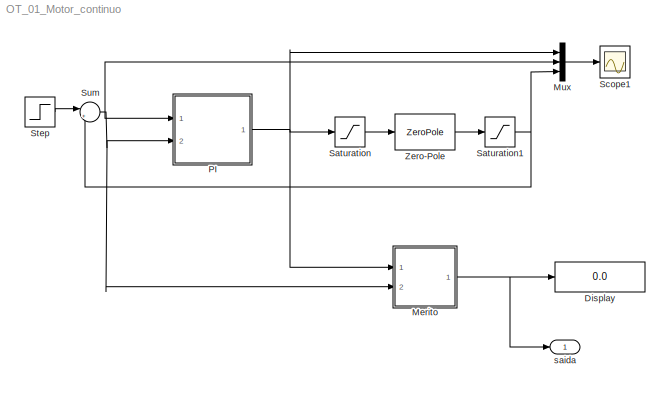
MODEL OT_01_Motor_continuo
KIND model
BLOCK [Display] Display
  Decimation = 1
  Lockdown = off
  Ports = [1]
  SID = 1
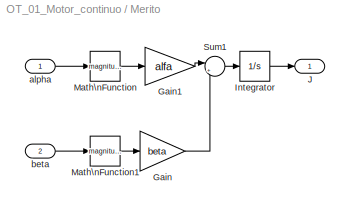
BLOCK [SubSystem] Merito
  FunctionWithSeparateData = off
  MaskHideContents = off
  MinAlgLoopOccurrences = off
  Opaque = off
  Ports = [2, 1]
  PropExecContextOutsideSubsystem = off
  RTWSystemCode = Auto
  RequestExecContextInheritance = off
  SID = 2
BLOCK [Gain] Merito/Gain
  Gain = beta
  SID = 5
BLOCK [Gain] Merito/Gain1
  Gain = alfa
  SID = 6
BLOCK [Integrator] Merito/Integrator
  Ports = [1, 1]
  SID = 7
BLOCK [Outport] Merito/J
  IconDisplay = Port number
  SID = 11
BLOCK [Math] Merito/Math\nFunction
  Operator = magnitude^2
  Ports = [1, 1]
  SID = 8
BLOCK [Math] Merito/Math\nFunction1
  Operator = magnitude^2
  Ports = [1, 1]
  SID = 9
BLOCK [Sum] Merito/Sum1
  IconShape = round
  InputSameDT = off
  Inputs = |++
  OutDataTypeStr = Inherit: Inherit via internal rule
  Ports = [2, 1]
  SID = 10
BLOCK [Inport] Merito/alpha
  IconDisplay = Port number
  SID = 3
BLOCK [Inport] Merito/beta
  IconDisplay = Port number
  Port = 2
  SID = 4
BLOCK [Mux] Mux
  DisplayOption = bar
  Inputs = 3
  Ports = [3, 1]
  SID = 12
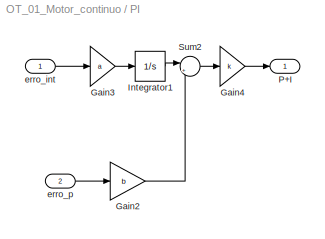
BLOCK [SubSystem] PI
  FunctionWithSeparateData = off
  MaskHideContents = off
  MinAlgLoopOccurrences = off
  Opaque = off
  Ports = [2, 1]
  PropExecContextOutsideSubsystem = off
  RTWSystemCode = Auto
  RequestExecContextInheritance = off
  SID = 13
BLOCK [Gain] PI/Gain2
  Gain = b
  SID = 16
BLOCK [Gain] PI/Gain3
  Gain = a
  SID = 17
BLOCK [Gain] PI/Gain4
  Gain = k
  SID = 18
BLOCK [Integrator] PI/Integrator1
  Ports = [1, 1]
  SID = 19
BLOCK [Outport] PI/P+I
  IconDisplay = Port number
  SID = 21
BLOCK [Sum] PI/Sum2
  IconShape = round
  InputSameDT = off
  Inputs = |++
  OutDataTypeStr = Inherit: Inherit via internal rule
  Ports = [2, 1]
  SID = 20
BLOCK [Inport] PI/erro_int
  IconDisplay = Port number
  SID = 14
BLOCK [Inport] PI/erro_p
  IconDisplay = Port number
  Port = 2
  SID = 15
BLOCK [Saturate] Saturation
  InputPortMap = u0
  LowerLimit = -10
  Ports = [1, 1]
  SID = 22
  UpperLimit = 10
BLOCK [Saturate] Saturation1
  InputPortMap = u0
  LowerLimit = -10
  Ports = [1, 1]
  SID = 23
  UpperLimit = 10
BLOCK [Scope] Scope1
  DataFormat = StructureWithTime
  Floating = off
  NumInputPorts = 1
  Ports = [1]
  SID = 24
  SampleTime = 0
  SaveName = ScopeData1
  YMax = 1.75
  YMin = -1
BLOCK [Step] Step
  SID = 25
  SampleTime = 0
BLOCK [Sum] Sum
  IconShape = round
  InputSameDT = off
  Inputs = |+-
  OutDataTypeStr = Inherit: Inherit via internal rule
  Ports = [2, 1]
  SID = 26
BLOCK [ZeroPole] Zero-Pole
  Poles = [0 -2]
  SID = 27
  Zeros = []
BLOCK [Outport] saida
  IconDisplay = Port number
  SID = 28
LINE Merito/Gain1:1 -> Merito/Sum1:1
LINE Merito/Gain:1 -> Merito/Sum1:2
LINE Merito/Integrator:1 -> Merito/J:1
LINE Merito/Math\nFunction1:1 -> Merito/Gain:1
LINE Merito/Math\nFunction:1 -> Merito/Gain1:1
LINE Merito/Sum1:1 -> Merito/Integrator:1
LINE Merito/alpha:1 -> Merito/Math\nFunction:1
LINE Merito/beta:1 -> Merito/Math\nFunction1:1
NET Merito:1 -> Display:1, saida:1
LINE Mux:1 -> Scope1:1
LINE PI/Gain2:1 -> PI/Sum2:2
LINE PI/Gain3:1 -> PI/Integrator1:1
LINE PI/Gain4:1 -> PI/P+I:1
LINE PI/Integrator1:1 -> PI/Sum2:1
LINE PI/Sum2:1 -> PI/Gain4:1
LINE PI/erro_int:1 -> PI/Gain3:1
LINE PI/erro_p:1 -> PI/Gain2:1
NET PI:1 -> Merito:1, Mux:1, Saturation:1
NET Saturation1:1 -> Mux:3, Sum:2
LINE Saturation:1 -> Zero-Pole:1
LINE Step:1 -> Sum:1
NET Sum:1 -> Merito:2, Mux:2, PI:1, PI:2
LINE Zero-Pole:1 -> Saturation1:1
note: NET lines group one-source signal fan-out (src -> all destinations, sorted); 1:1 wires keep LINE
